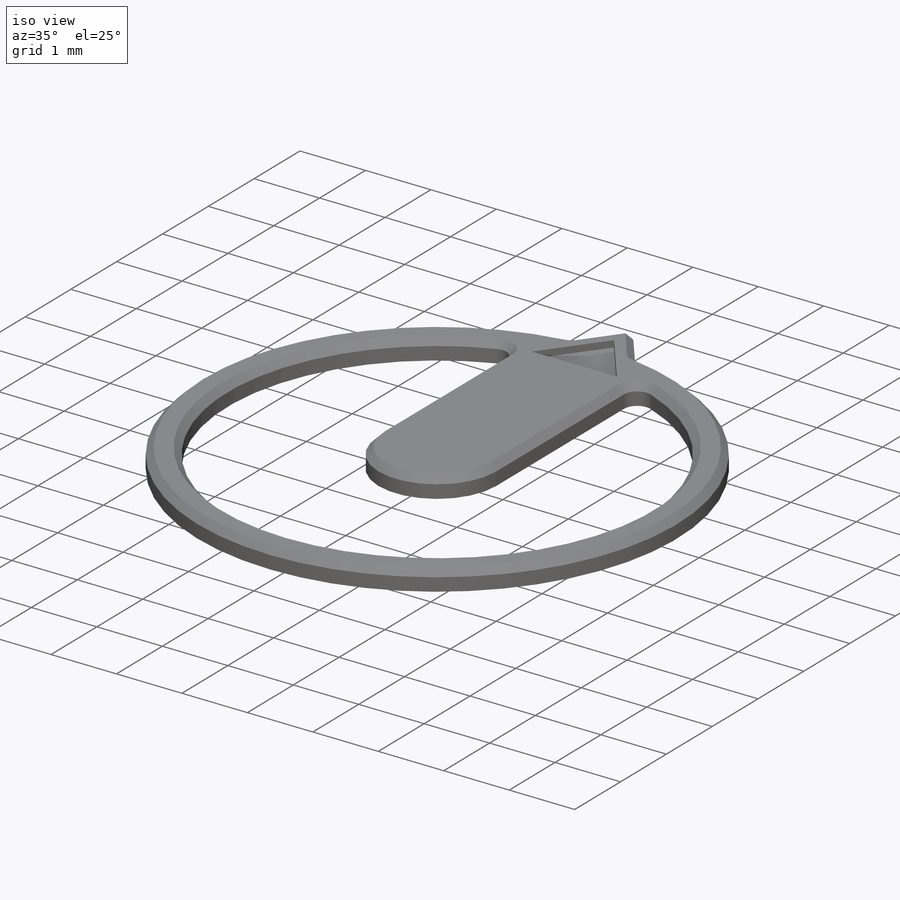
[diagram: iso view]
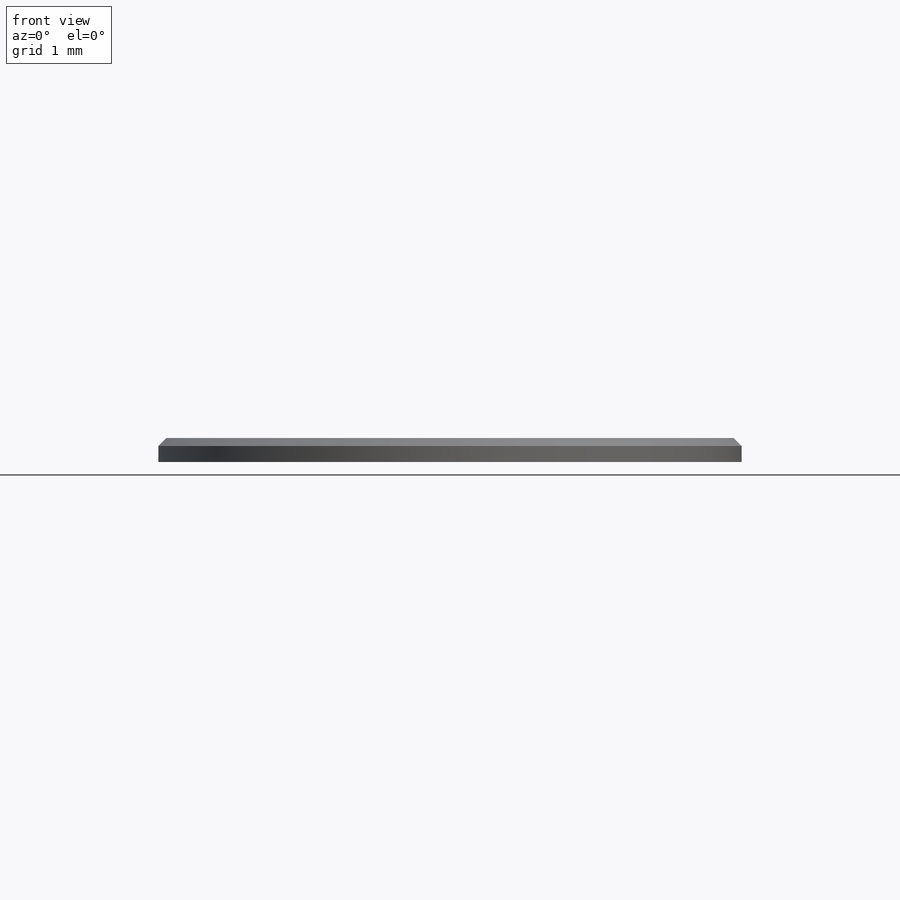
[diagram: front view]
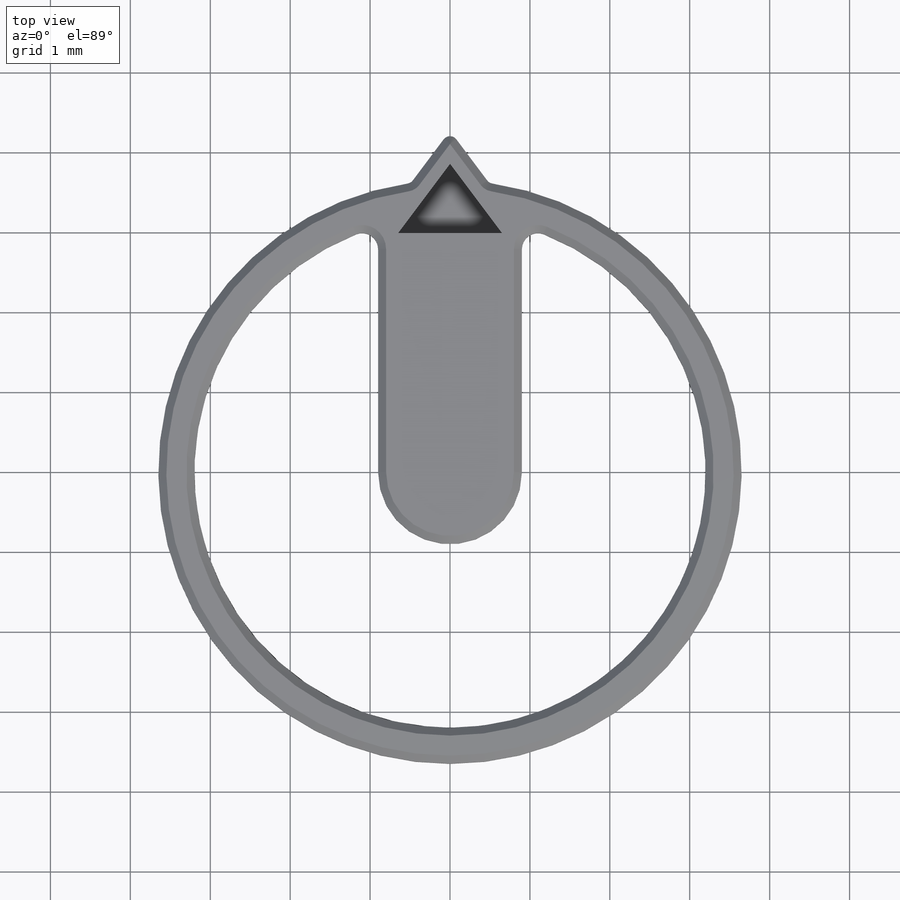
[diagram: top view]
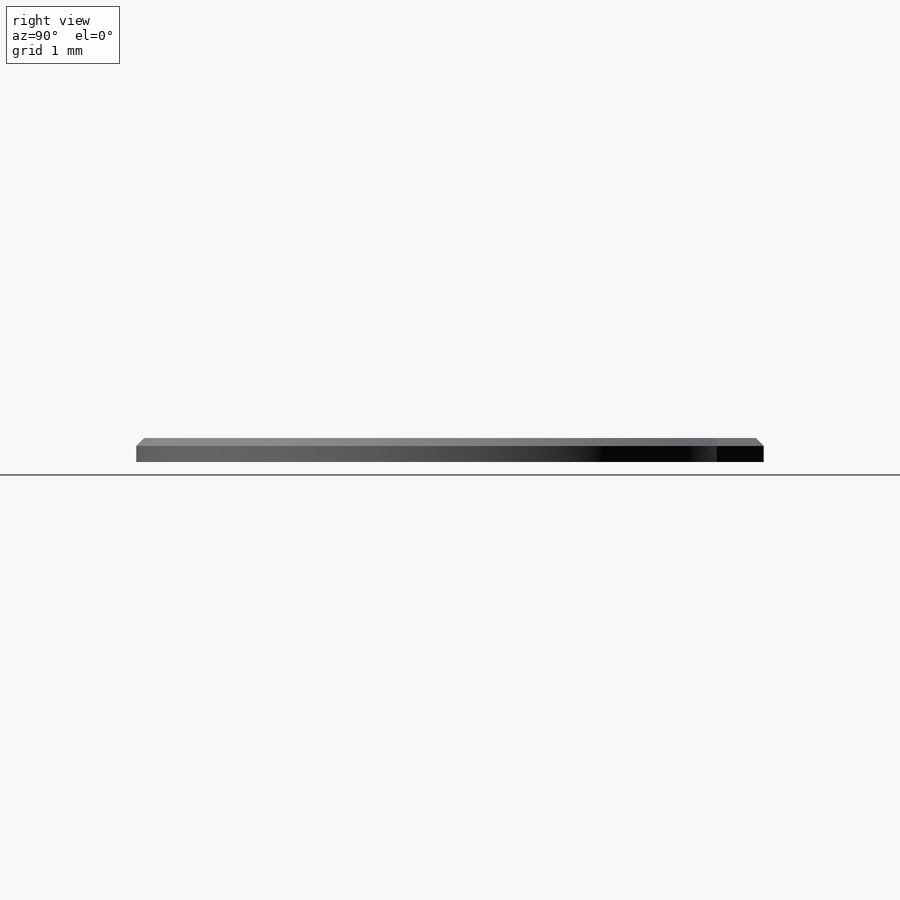
[diagram: right view]
SOLIDWORKS PART (.sldprt)
format: sldprt  version: not decoded by parser v0  size: 245,760 bytes
history: native  units: mm
features: sketch x4, extrude x2, cut_extrude x2, fillet x2, material x1, chamfer x1 (+11 scaffold rows collapsed)
feature tree (23):
  scaffold x11  (default folders/planes/origin — collapsed)
  material  "Material <not specified>"
  sketch  "Sketch2"  dims[D1=11.0mm D2=2.3mm]
  extrude  "Boss-Extrude1"  Depth=0.3mm
  sketch  "Sketch3"  dims[c1.D1=~0.614748mm c1.D2=~0.616699mm c2.D1=0.4mm c2.D2=0.2mm c2.D3=4.0mm c2.D4=0.4mm c2.D5=0.4mm]
  extrude  "Boss-Extrude2"  [1 undecoded]
  sketch  "Sketch4"  dims[c1.D2=3.2mm c1.D3=11.0mm c1.D1=~2.950335mm c2.D1=60.0deg c2.D2=0.45mm c2.D3=0.45mm c2.D4=1.2mm]
  cut_extrude  "Cut-Extrude1"  [1 undecoded]
  fillet  "Fillet1"  Radius=0.2mm
  fillet  "Fillet2"  Radius=0.1mm
  chamfer  "Chamfer1"  Distance=0.1mm Angle=45deg
  sketch  "Sketch5"  dims[D2=0.15mm D1=0.15mm]
  cut_extrude  "Cut-Extrude2"  Depth=0.1mm
decode coverage: 9 of 11 modeling features carry decoded parameters
note: ~ marks probable driven/reference dimensions
note: 2 parameter values undecoded
note: suppression state not decoded; provenance and decode notes live in map.json
